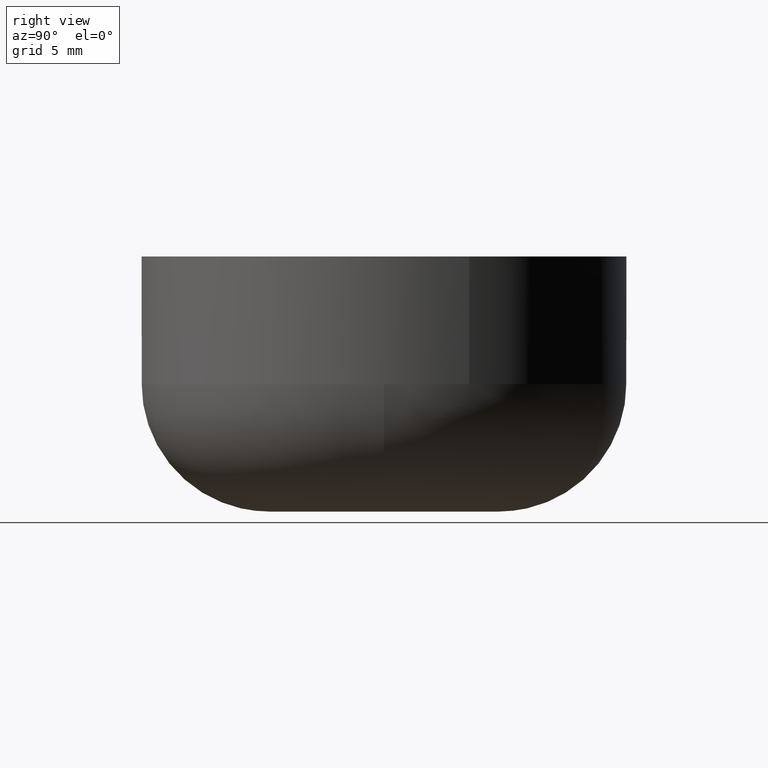
[diagram: clean part render]
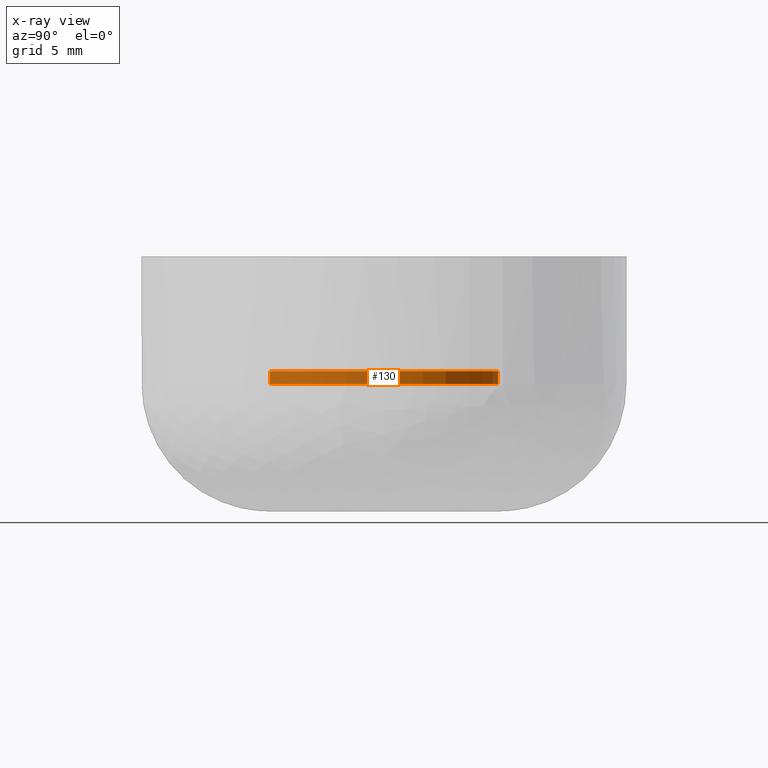
[diagram: x-ray — body ghosted, one internal face saturated and labeled with its STEP entity id]
A machine part, right view, then the same camera in x-ray: the body is ghosted and one INTERNAL B-rep face — a face not visible from any outside direction — is saturated and labeled: STEP entity #130.
In plain terms, the highlighted cylindrical surface (partial cylindrical patch) has radius 4.5 mm, axis along (0, 0, -1).
Its self-contained STEP definition (entity closure, byte-faithful):
#130=ADVANCED_FACE('',(#319),#318,.F.);
#318=CYLINDRICAL_SURFACE('',#479,4.50000000000E+000);
#319=FACE_OUTER_BOUND('',#480,.T.);
#476=CARTESIAN_POINT('',(-1.39009965079E-016,2.34160082198E-016,5.25000000000E+000));
#477=DIRECTION('',(1.48535681516E-015,1.76557173133E-016,-1.00000000000E+000));
#478=DIRECTION('',(-1.18034234657E-001,9.93009526364E-001,-1.00254360292E-027));
#479=AXIS2_PLACEMENT_3D('',#476,#477,#478);
#480=EDGE_LOOP('',(#562,#563,#564,#565));
#562=ORIENTED_EDGE('',*,*,#587,.F.);
#563=ORIENTED_EDGE('',*,*,#610,.T.);
#564=ORIENTED_EDGE('',*,*,#591,.T.);
#565=ORIENTED_EDGE('',*,*,#611,.F.);
#587=EDGE_CURVE('',#721,#720,#728,.T.);
#591=EDGE_CURVE('',#749,#748,#756,.T.);
#610=EDGE_CURVE('',#721,#749,#880,.T.);
#611=EDGE_CURVE('',#720,#748,#886,.T.);
#720=VERTEX_POINT('',#960);
#721=VERTEX_POINT('',#961);
#728=CIRCLE('',#969,4.50000000000E+000);
#748=VERTEX_POINT('',#980);
#749=VERTEX_POINT('',#981);
#756=CIRCLE('',#989,4.50000000000E+000);
#880=(BOUNDED_CURVE() B_SPLINE_CURVE(1,(#1062,#1063),.UNSPECIFIED.,.F.,.F.) B_SPLINE_CURVE_WITH_KNOTS((2,2),(8.33334128067E-002,9.16666680514E-001),.UNSPECIFIED.) CURVE() GEOMETRIC_REPRESENTATION_ITEM() RATIONAL_B_SPLINE_CURVE((1.00000000000E+000,1.00000000000E+000)) REPRESENTATION_ITEM('') );
#886=(BOUNDED_CURVE() B_SPLINE_CURVE(1,(#1064,#1065),.UNSPECIFIED.,.F.,.F.) B_SPLINE_CURVE_WITH_KNOTS((2,2),(8.33333333431E-002,9.16666666667E-001),.UNSPECIFIED.) CURVE() GEOMETRIC_REPRESENTATION_ITEM() RATIONAL_B_SPLINE_CURVE((7.50000000000E-001,7.50000000000E-001)) REPRESENTATION_ITEM('') );
#960=CARTESIAN_POINT('',(5.31154054643E-001,-4.46854286879E+000,5.50000000000E+000));
#961=CARTESIAN_POINT('',(-5.31154055956E-001,4.46854286864E+000,5.50000000000E+000));
#966=CARTESIAN_POINT('',(2.78754797023E-012,1.26565424807E-012,5.50000000000E+000));
#967=DIRECTION('',(-8.56203996592E-013,-1.27621061029E-013,-1.00000000000E+000));
#968=DIRECTION('',(1.18034234365E-001,-9.93009526398E-001,2.56675461732E-014));
#969=AXIS2_PLACEMENT_3D('',#966,#967,#968);
#980=CARTESIAN_POINT('',(5.31926369525E-001,-4.46845099978E+000,5.00000000000E+000));
#981=CARTESIAN_POINT('',(-5.31926369520E-001,4.46845099978E+000,5.00000000000E+000));
#986=CARTESIAN_POINT('',(2.72315503480E-012,1.23767662785E-012,5.00000000000E+000));
#987=DIRECTION('',(-4.65931856824E-017,3.91986544907E-016,-1.00000000000E+000));
#988=DIRECTION('',(-1.18205859894E-001,9.92989111062E-001,3.94745958354E-016));
#989=AXIS2_PLACEMENT_3D('',#986,#987,#988);
#1062=CARTESIAN_POINT('',(-5.31154055956E-001,4.46854286864E+000,5.49999995232E+000));
#1063=CARTESIAN_POINT('',(-5.31154055956E-001,4.46854286864E+000,4.99999999169E+000));
#1064=CARTESIAN_POINT('',(5.31154055956E-001,-4.46854286864E+000,5.50000000000E+000));
#1065=CARTESIAN_POINT('',(5.31154055956E-001,-4.46854286864E+000,5.00000000000E+000));